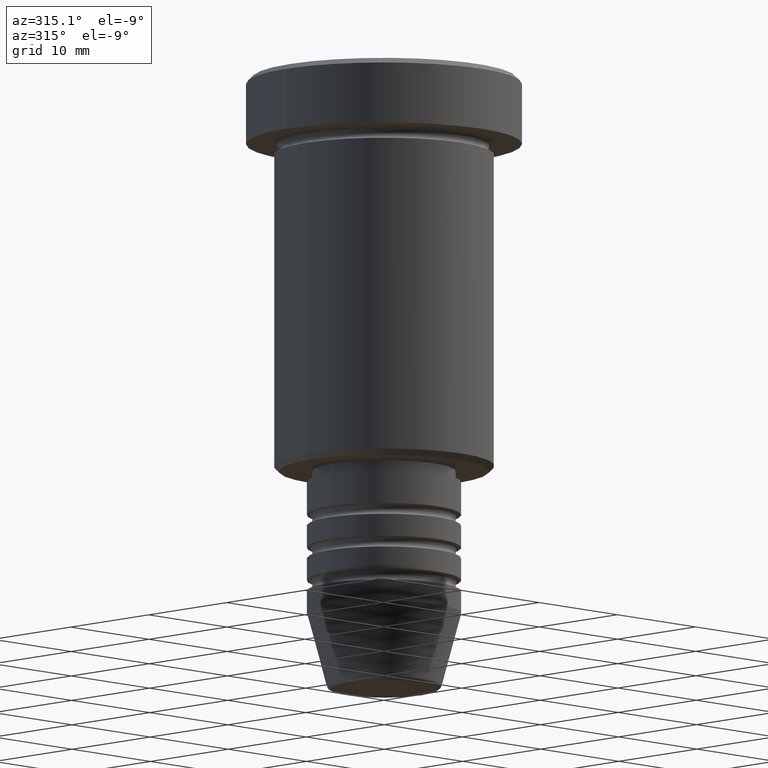
[diagram: clean part render]
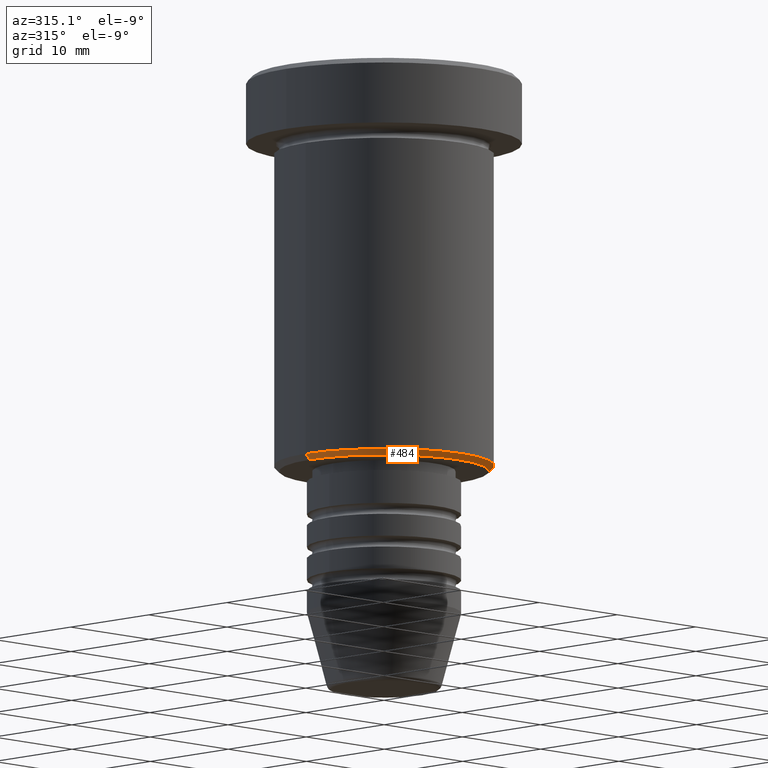
[diagram: same view with one face highlighted and labeled with its STEP entity id]
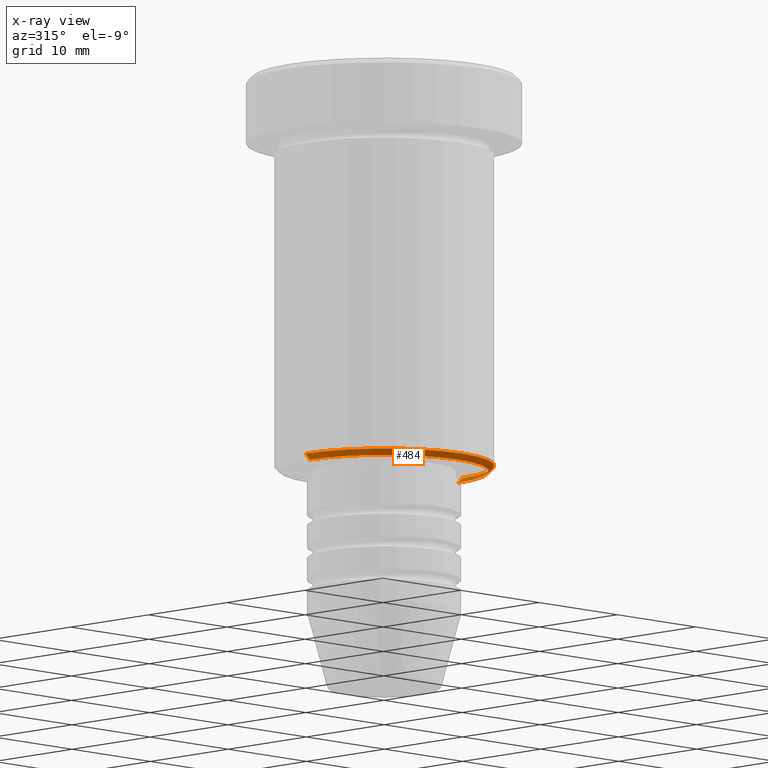
[diagram: x-ray of the same camera — body ghosted, the highlighted face saturated]
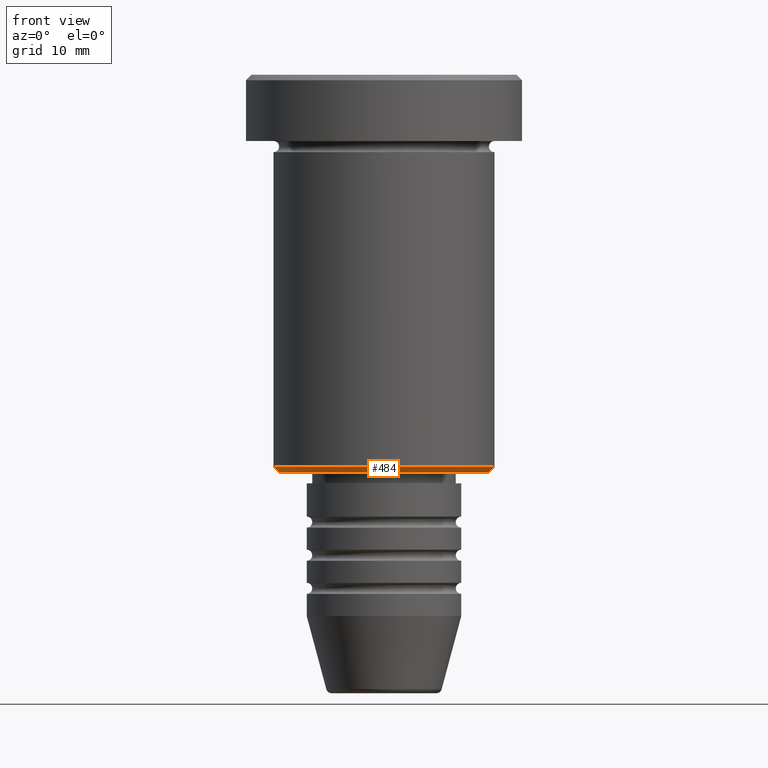
[diagram: same view with one face highlighted and labeled with its STEP entity id]
A machine part, auxiliary view. The second image highlights one B-rep face of the part: STEP entity #484.
The next image is the same camera in x-ray: the body ghosted, the highlighted face saturated — about 0% of this face is hidden behind the body in this view.
A second angle (front view) of the same face is appended — the face is thin or edge-on in the first view.
In plain terms, the highlighted conical surface has half-angle 45 deg.
Its self-contained STEP definition (entity closure, byte-faithful):
#25 = CONICAL_SURFACE ( 'NONE', #1080, 10.00000000000000000, 0.7853981633974396193 ) ;
#31 = CARTESIAN_POINT ( 'NONE',  ( 9.500000000000008882, 0.000000000000000000, -36.00000000000000000 ) ) ;
#57 = CARTESIAN_POINT ( 'NONE',  ( -10.00000000000000000, 1.224646799147353256E-15, -35.50000000000000000 ) ) ;
#77 = DIRECTION ( 'NONE',  ( 0.000000000000000000, 0.000000000000000000, -1.000000000000000000 ) ) ;
#199 = CARTESIAN_POINT ( 'NONE',  ( 10.00000000000000000, 0.000000000000000000, -35.50000000000000000 ) ) ;
#217 = EDGE_CURVE ( 'NONE', #361, #1008, #749, .T. ) ;
#257 = ORIENTED_EDGE ( 'NONE', *, *, #217, .T. ) ;
#318 = EDGE_CURVE ( 'NONE', #361, #332, #387, .T. ) ;
#320 = DIRECTION ( 'NONE',  ( 0.7071067811865414665, 0.000000000000000000, 0.7071067811865536790 ) ) ;
#326 = FACE_OUTER_BOUND ( 'NONE', #1141, .T. ) ;
#332 = VERTEX_POINT ( 'NONE', #582 ) ;
#336 = CIRCLE ( 'NONE', #390, 10.00000000000000000 ) ;
#360 = EDGE_CURVE ( 'NONE', #332, #364, #1036, .T. ) ;
#361 = VERTEX_POINT ( 'NONE', #31 ) ;
#364 = VERTEX_POINT ( 'NONE', #57 ) ;
#387 = CIRCLE ( 'NONE', #896, 9.500000000000008882 ) ;
#390 = AXIS2_PLACEMENT_3D ( 'NONE', #883, #425, #681 ) ;
#425 = DIRECTION ( 'NONE',  ( -0.000000000000000000, -0.000000000000000000, 1.000000000000000000 ) ) ;
#484 = ADVANCED_FACE ( 'NONE', ( #326 ), #25, .T. ) ;
#512 = VECTOR ( 'NONE', #876, 1000.000000000000000 ) ;
#541 = ORIENTED_EDGE ( 'NONE', *, *, #759, .F. ) ;
#582 = CARTESIAN_POINT ( 'NONE',  ( -9.500000000000008882, 1.194030629168669864E-15, -36.00000000000000000 ) ) ;
#594 = DIRECTION ( 'NONE',  ( 1.000000000000000000, 0.000000000000000000, 0.000000000000000000 ) ) ;
#642 = ORIENTED_EDGE ( 'NONE', *, *, #318, .F. ) ;
#645 = VECTOR ( 'NONE', #320, 1000.000000000000000 ) ;
#681 = DIRECTION ( 'NONE',  ( -1.000000000000000000, 0.000000000000000000, 0.000000000000000000 ) ) ;
#700 = CARTESIAN_POINT ( 'NONE',  ( 0.000000000000000000, 0.000000000000000000, -35.50000000000000000 ) ) ;
#704 = CARTESIAN_POINT ( 'NONE',  ( 0.000000000000000000, 0.000000000000000000, -36.00000000000000000 ) ) ;
#746 = CARTESIAN_POINT ( 'NONE',  ( 10.00000000000000000, 0.000000000000000000, -35.50000000000000000 ) ) ;
#749 = LINE ( 'NONE', #199, #645 ) ;
#759 = EDGE_CURVE ( 'NONE', #364, #1008, #336, .T. ) ;
#856 = CARTESIAN_POINT ( 'NONE',  ( -10.00000000000000000, 1.224646799147353256E-15, -35.50000000000000000 ) ) ;
#876 = DIRECTION ( 'NONE',  ( -0.7071067811865414665, 8.659560562354860135E-17, 0.7071067811865536790 ) ) ;
#883 = CARTESIAN_POINT ( 'NONE',  ( 0.000000000000000000, 0.000000000000000000, -35.50000000000000000 ) ) ;
#896 = AXIS2_PLACEMENT_3D ( 'NONE', #704, #77, #1167 ) ;
#1008 = VERTEX_POINT ( 'NONE', #746 ) ;
#1036 = LINE ( 'NONE', #856, #512 ) ;
#1080 = AXIS2_PLACEMENT_3D ( 'NONE', #700, #1129, #594 ) ;
#1129 = DIRECTION ( 'NONE',  ( -0.000000000000000000, -0.000000000000000000, 1.000000000000000000 ) ) ;
#1141 = EDGE_LOOP ( 'NONE', ( #1145, #642, #257, #541 ) ) ;
#1145 = ORIENTED_EDGE ( 'NONE', *, *, #360, .F. ) ;
#1167 = DIRECTION ( 'NONE',  ( -1.000000000000000000, 0.000000000000000000, 0.000000000000000000 ) ) ;